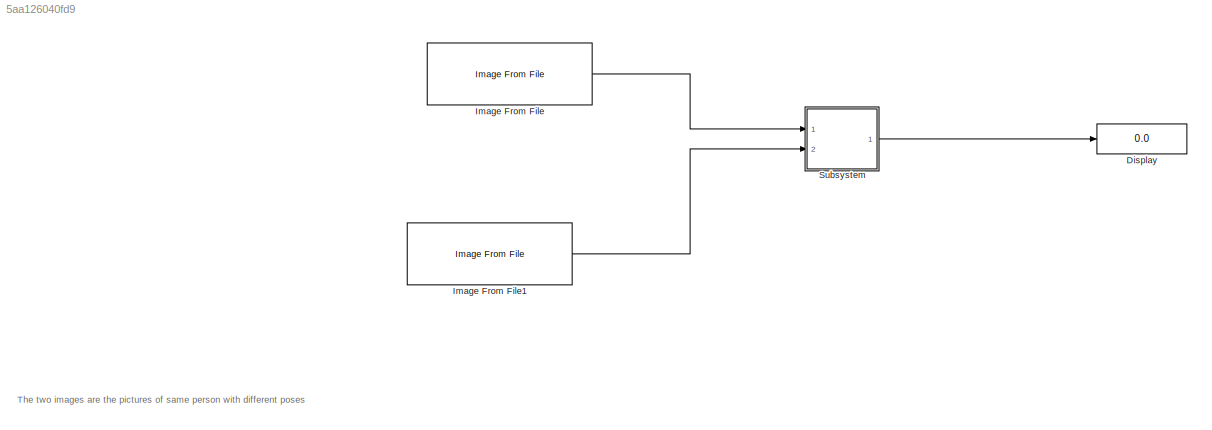
MODEL slx_5aa126040fd9
KIND model
CONFIG AbsTol = auto
CONFIG EnableMultiTasking = off
CONFIG FixedStep = auto
CONFIG MaxStep = auto
CONFIG MinStep = auto
CONFIG RelTol = 1e-3
CONFIG SampleTimeConstraint = Unconstrained
CONFIG SolverName = VariableStepAuto
CONFIG StartTime = 0.0
CONFIG StopTime = 10.0
BLOCK [Display] Display
  Decimation = 1
  Ports = [1]
BLOCK [Reference] Image From File  REF=visionsources/Image From File
  Ports = [0, 1]
  SourceBlock = visionsources/Image From File
  SourceProductBaseCode = VP
  SourceType = Image From File
  Tag = vipblks_nd
BLOCK [Reference] Image From File1  REF=visionsources/Image From File
  Ports = [0, 1]
  SourceBlock = visionsources/Image From File
  SourceProductBaseCode = VP
  SourceType = Image From File
  Tag = vipblks_nd
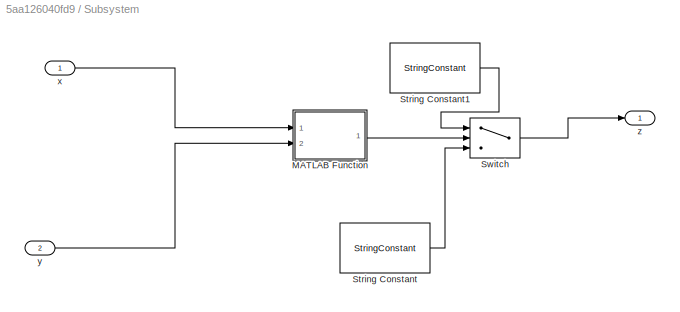
BLOCK [SubSystem] Subsystem
  Ports = [2, 1]
  RequestExecContextInheritance = off
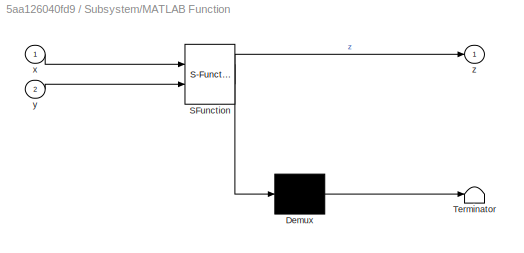
BLOCK [SubSystem] Subsystem/MATLAB Function
  ErrorFcn = Stateflow.Translate.translate
  PermitHierarchicalResolution = ExplicitOnly
  Ports = [2, 1]
  RequestExecContextInheritance = off
  SFBlockType = MATLAB Function
  TreatAsAtomicUnit = on
BLOCK [Demux] Subsystem/MATLAB Function/ Demux 
  Outputs = 1
  Ports = [1, 1]
BLOCK [S-Function] Subsystem/MATLAB Function/ SFunction 
  EnableBusSupport = on
  FunctionName = sf_sfun
  PortCounts = [2 2]
  Ports = [2, 2]
  SFcnIsStateOwnerBlock = off
  SFunctionDeploymentMode = off
  Tag = Stateflow S-Function 2
BLOCK [Terminator] Subsystem/MATLAB Function/ Terminator 
BLOCK [Inport] Subsystem/MATLAB Function/x
BLOCK [Inport] Subsystem/MATLAB Function/y
  Port = 2
BLOCK [Outport] Subsystem/MATLAB Function/z
BLOCK [StringConstant] Subsystem/String Constant
  String = "Same"
BLOCK [StringConstant] Subsystem/String Constant1
  String = "Different"
BLOCK [Switch] Subsystem/Switch
  Criteria = u2 ~= 0
  InputSameDT = off
  SaturateOnIntegerOverflow = off
BLOCK [Inport] Subsystem/x
BLOCK [Inport] Subsystem/y
  Port = 2
BLOCK [Outport] Subsystem/z
ANNOTATION (root): The two images are the pictures of same person with different poses
LINE Image From File1:1 -> Subsystem:2
LINE Image From File:1 -> Subsystem:1
LINE Subsystem/MATLAB Function:1 -> Subsystem/Switch:2
LINE Subsystem/String Constant1:1 -> Subsystem/Switch:1
LINE Subsystem/String Constant:1 -> Subsystem/Switch:3
LINE Subsystem/Switch:1 -> Subsystem/z:1
LINE Subsystem/x:1 -> Subsystem/MATLAB Function:1
LINE Subsystem/y:1 -> Subsystem/MATLAB Function:2
LINE Subsystem:1 -> Display:1
CHART Subsystem/MATLAB Function states=1 transitions=1
  STATE_LABEL 'eML_blk_kernel()'
  STATE_LABEL 'SCRIPT:\nfunction z = fcn(x,y)\ng=size(x);\ny=imresize(y,[g(1),g(2)]);\nfigure;\nif(x==y)\n    z=1;\nelse\n    z=0;\nend\n'
CHART  states=0 transitions=0
